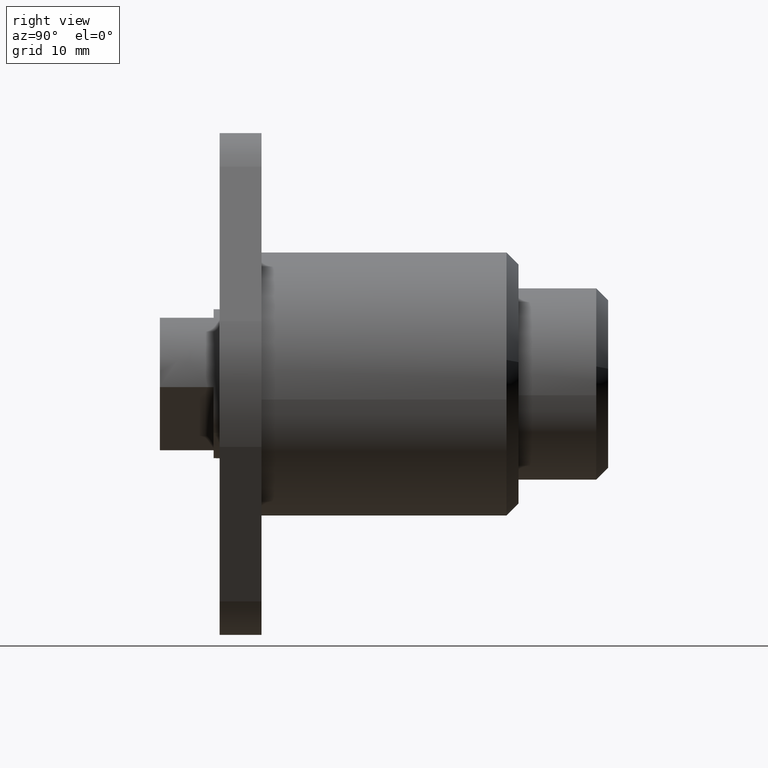
[diagram: clean part render]
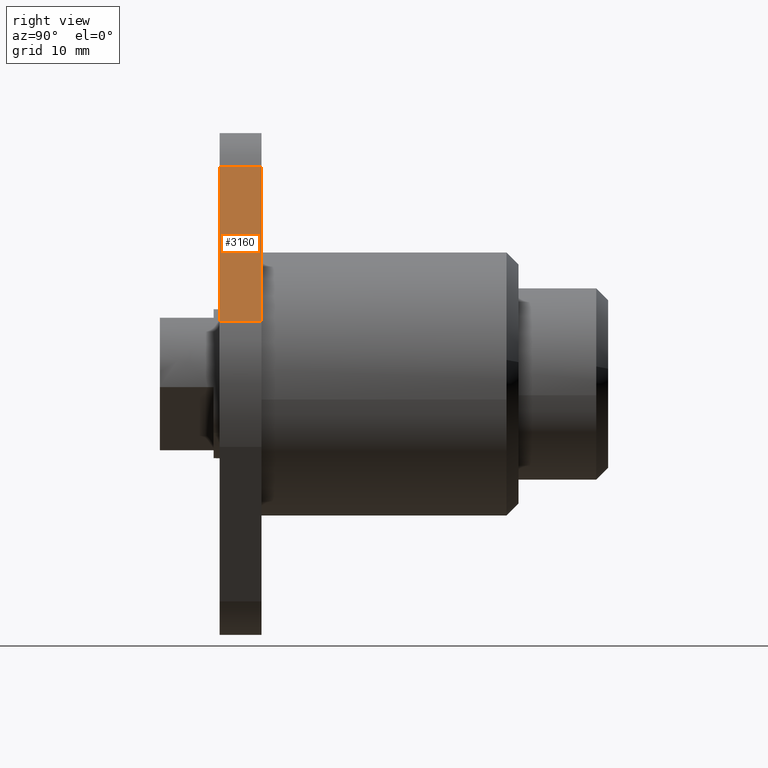
[diagram: same view with one face highlighted and labeled with its STEP entity id]
A machine part, right view. The second image highlights one B-rep face of the part: STEP entity #3160.
In plain terms, the highlighted face is a freeform B-spline surface patch.
Its self-contained STEP definition (entity closure, byte-faithful):
#2800=CARTESIAN_POINT('',(10.787798958201421,0.0,5.255806668611340));
#2801=VERTEX_POINT('',#2800);
#2802=CARTESIAN_POINT('',(4.496091968056815,0.0,18.187510648982901));
#2803=VERTEX_POINT('',#2802);
#2804=CARTESIAN_POINT('',(10.787798958201421,0.0,5.255806668611340));
#2805=CARTESIAN_POINT('',(4.496091968056815,0.0,18.187510648982901));
#2806=QUASI_UNIFORM_CURVE('',1,(#2804,#2805),.UNSPECIFIED.,.F.,.U.);
#2807=EDGE_CURVE('',#2801,#2803,#2806,.T.);
#2928=CARTESIAN_POINT('',(10.787798958201421,-3.499999999999950,5.255806668611340));
#2929=VERTEX_POINT('',#2928);
#2930=CARTESIAN_POINT('',(10.787798958201421,-3.499999999999950,5.255806668611340));
#2931=CARTESIAN_POINT('',(10.787798958201421,0.0,5.255806668611340));
#2932=QUASI_UNIFORM_CURVE('',1,(#2930,#2931),.UNSPECIFIED.,.F.,.U.);
#2933=EDGE_CURVE('',#2929,#2801,#2932,.T.);
#3120=CARTESIAN_POINT('',(4.496091968056815,-3.499999999999950,18.187510648982901));
#3121=VERTEX_POINT('',#3120);
#3137=CARTESIAN_POINT('',(4.496091968056815,-3.499999999999950,18.187510648982901));
#3138=CARTESIAN_POINT('',(4.496091968056815,0.0,18.187510648982901));
#3139=QUASI_UNIFORM_CURVE('',1,(#3137,#3138),.UNSPECIFIED.,.F.,.U.);
#3140=EDGE_CURVE('',#3121,#2803,#3139,.T.);
#3145=CARTESIAN_POINT('',(11.102069749655010,-3.674824993216269,4.609867798810861));
#3146=CARTESIAN_POINT('',(4.181822694598090,-3.674824993216269,18.833450400325521));
#3147=CARTESIAN_POINT('',(11.102069749655010,0.174825087093634,4.609867798810861));
#3148=CARTESIAN_POINT('',(4.181822694598090,0.174825087093634,18.833450400325521));
#3149=B_SPLINE_SURFACE_WITH_KNOTS('',1,1,((#3145,#3147),(#3146,#3148)),.UNSPECIFIED.,.F.,.F.,.U.,(2,2),(2,2),(0.0,15.817715426860310),(0.0,3.849650080309903),.UNSPECIFIED.);
#3150=ORIENTED_EDGE('',*,*,#2807,.T.);
#3151=ORIENTED_EDGE('',*,*,#3140,.F.);
#3152=CARTESIAN_POINT('',(10.787798958201421,-3.499999999999950,5.255806668611340));
#3153=CARTESIAN_POINT('',(4.496091968056815,-3.499999999999950,18.187510648982901));
#3154=QUASI_UNIFORM_CURVE('',1,(#3152,#3153),.UNSPECIFIED.,.F.,.U.);
#3155=EDGE_CURVE('',#2929,#3121,#3154,.T.);
#3156=ORIENTED_EDGE('',*,*,#3155,.F.);
#3157=ORIENTED_EDGE('',*,*,#2933,.T.);
#3158=EDGE_LOOP('',(#3150,#3151,#3156,#3157));
#3159=FACE_OUTER_BOUND('',#3158,.T.);
#3160=ADVANCED_FACE('',(#3159),#3149,.F.);